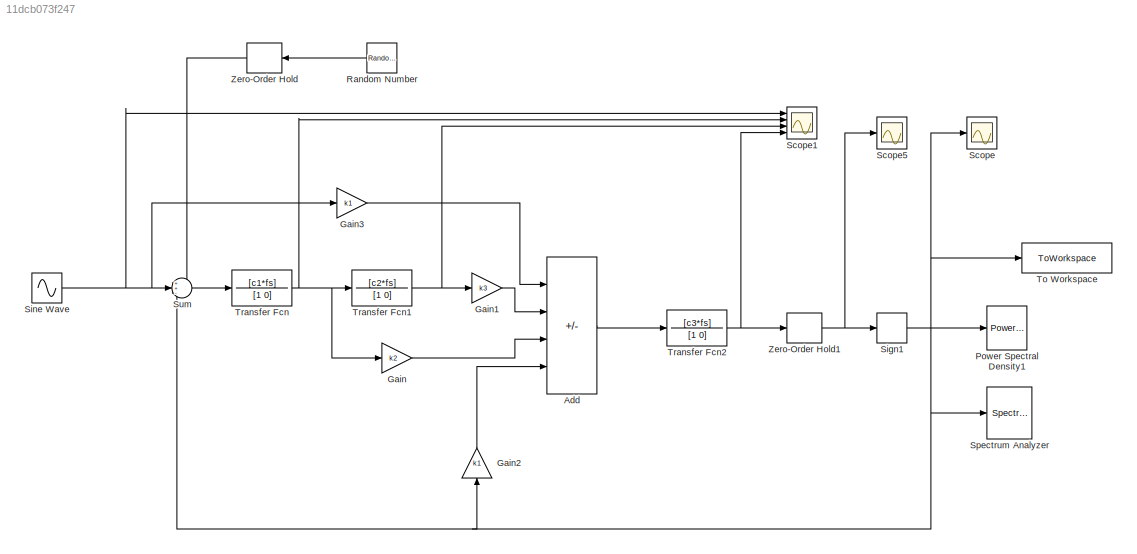
MODEL slx_11dcb073f247
KIND model
CONFIG AbsTol = auto
CONFIG EnableMultiTasking = off
CONFIG FixedStep = auto
CONFIG MaxStep = auto
CONFIG MinStep = auto
CONFIG RelTol = 1e-3
CONFIG SampleTimeConstraint = Unconstrained
CONFIG SolverName = VariableStepAuto
CONFIG StartTime = 0.0
CONFIG StopTime = time
BLOCK [Sum] Add
  IconShape = rectangular
  Inputs = +++-
  Ports = [4, 1]
BLOCK [Gain] Gain
  Gain = k2
BLOCK [Gain] Gain1
  Gain = k3
BLOCK [Gain] Gain2
  Gain = k1
  NameLocation = right
BLOCK [Gain] Gain3
  Gain = k1
BLOCK [Reference] Power Spectral Density1  REF=SDtoolbox/Power Spectral Density
  Ports = [1]
  SourceBlock = SDtoolbox/Power Spectral Density
BLOCK [RandomNumber] Random Number
  Commented = on
  SampleTime = Ts
  Variance = 6.91e-6
BLOCK [Scope] Scope
  Floating = off
  NumInputPorts = 1
  Ports = [1]
  ScopeSpecificationString = Simulink.scopes.TimeScopeBlockCfg('CurrentConfiguration', extmgr.ConfigurationSet(extmgr.Configuration('Core','General UI',true),extmgr.Configuration('Core','Source UI',true),extmgr.Configuration('Sources','WiredSimulink',true),extmgr.Configuration('Visuals','Time Domain',true,'SerializedDisplays',{struct('MinYLimReal','-1.25','MaxYLimReal','1.25','YLabelReal','','MinYLimMag','0.00000','MaxYLimMag...<+1409ch>
BLOCK [Scope] Scope1
  Floating = off
  NumInputPorts = 4
  Ports = [4]
  ScopeSpecificationString = Simulink.scopes.TimeScopeBlockCfg('CurrentConfiguration', extmgr.ConfigurationSet(extmgr.Configuration('Core','General UI',true),extmgr.Configuration('Core','Source UI',true),extmgr.Configuration('Sources','WiredSimulink',true,'DataLoggingVariableName','ScopeData1'),extmgr.Configuration('Visuals','Time Domain',true,'SerializedDisplays',{struct('MinYLimReal','-1.00000','MaxYLimReal','1.00000','YLab...<+3474ch>
BLOCK [Scope] Scope5
  Floating = off
  NumInputPorts = 1
  Ports = [1]
  ScopeSpecificationString = Simulink.scopes.TimeScopeBlockCfg('CurrentConfiguration', extmgr.ConfigurationSet(extmgr.Configuration('Core','General UI',true),extmgr.Configuration('Core','Source UI',true),extmgr.Configuration('Sources','WiredSimulink',true,'DataLoggingVariableName','ScopeData5'),extmgr.Configuration('Visuals','Time Domain',true,'SerializedDisplays',{struct('MinYLimReal','-1.20793','MaxYLimReal','1.2083','YLabe...<+1448ch>
BLOCK [Signum] Sign1
BLOCK [Sin] Sine Wave
  Amplitude = 0.8
  Frequency = fin*2*pi
  Ports = [0, 1]
  SampleTime = 0
BLOCK [SpectrumAnalyzer] Spectrum Analyzer
  Ports = [1]
  ScopeSpecificationString = spbscopes.SpectrumAnalyzerBlockCfg('CurrentConfiguration', extmgr.ConfigurationSet(extmgr.Configuration('Core','General UI',true),extmgr.Configuration('Core','Source UI',true),extmgr.Configuration('Sources','WiredSimulink',true),extmgr.Configuration('Sources','SimulinkEvent',false),extmgr.Configuration('Sources','Simulink',false),extmgr.Configuration('Sources','SPTool',false),extmgr.Configuration(...<+4067ch>
BLOCK [Sum] Sum
  Inputs = ++-
  Ports = [3, 1]
BLOCK [ToWorkspace] To Workspace
  FixptAsFi = on
  MaxDataPoints = inf
  Ports = [1]
  SampleTime = 1/fs
  VariableName = v
BLOCK [TransferFcn] Transfer Fcn
  Denominator = [1 0]
  Numerator = [c1*fs]
BLOCK [TransferFcn] Transfer Fcn1
  Denominator = [1 0]
  Numerator = [c2*fs]
BLOCK [TransferFcn] Transfer Fcn2
  Denominator = [1 0]
  Numerator = [c3*fs]
BLOCK [ZeroOrderHold] Zero-Order Hold
  Commented = on
  SampleTime = -1
BLOCK [ZeroOrderHold] Zero-Order Hold1
  SampleTime = 1/fs
LINE Add:1 -> Transfer Fcn2:1
LINE Gain1:1 -> Add:2
LINE Gain2:1 -> Add:4
LINE Gain3:1 -> Add:1
LINE Gain:1 -> Add:3
LINE Random Number:1 -> Zero-Order Hold:1
NET Sign1:1 -> Gain2:1, Power Spectral Density1:1, Scope:1, Spectrum Analyzer:1, Sum:3, To Workspace:1
NET Sine Wave:1 -> Gain3:1, Scope1:1, Sum:2
LINE Sum:1 -> Transfer Fcn:1
NET Transfer Fcn1:1 -> Gain1:1, Scope1:3
NET Transfer Fcn2:1 -> Scope1:4, Zero-Order Hold1:1
NET Transfer Fcn:1 -> Gain:1, Scope1:2, Transfer Fcn1:1
NET Zero-Order Hold1:1 -> Scope5:1, Sign1:1
LINE Zero-Order Hold:1 -> Sum:1
note: NET lines group one-source signal fan-out (src -> all destinations, sorted); 1:1 wires keep LINE
